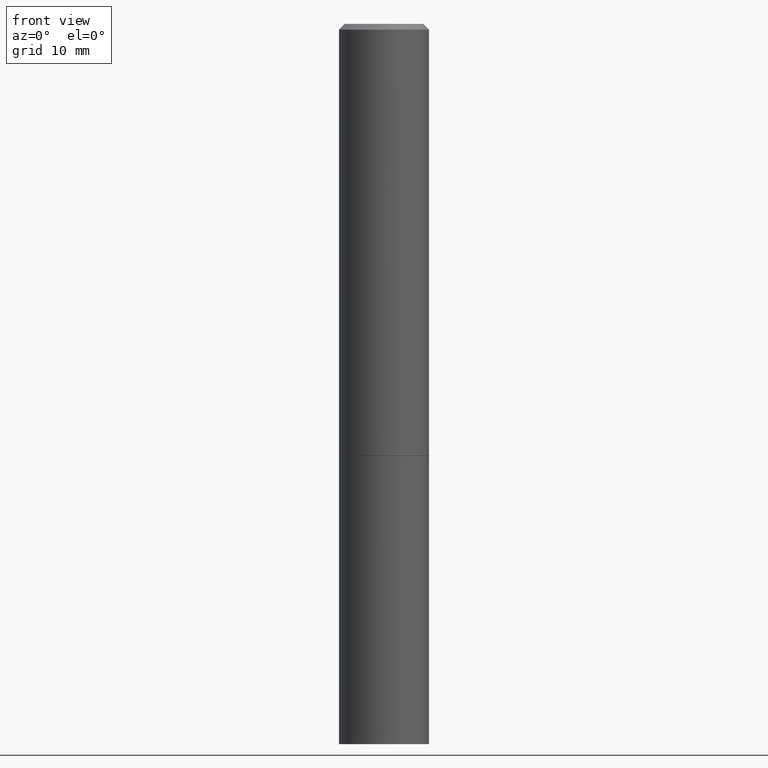
[diagram: clean part render]
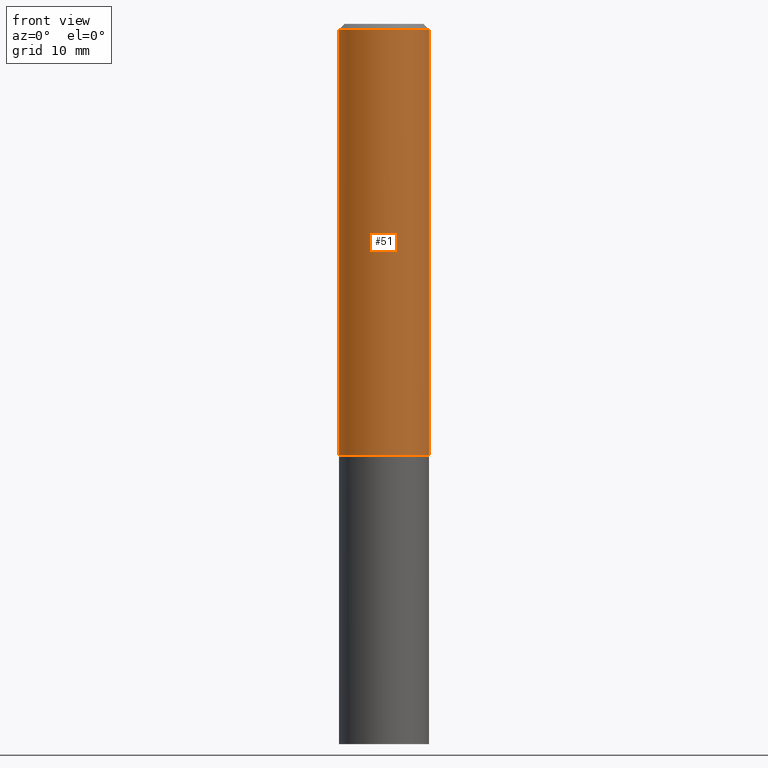
[diagram: same view with one face highlighted and labeled with its STEP entity id]
A machine part, front view. The second image highlights one B-rep face of the part: STEP entity #51.
In plain terms, the highlighted cylindrical surface (partial cylindrical patch) has radius 3.9687 mm, axis along (-0, 0, 1).
Its self-contained STEP definition (entity closure, byte-faithful):
#3 = EDGE_LOOP ( 'NONE', ( #326, #222, #253, #218 ) ) ;
#24 = EDGE_CURVE ( 'NONE', #267, #251, #115, .T. ) ;
#46 = EDGE_CURVE ( 'NONE', #267, #333, #210, .T. ) ;
#48 = DIRECTION ( 'NONE',  ( -2.445468806185136877E-29, 3.491481338843145188E-15, 1.000000000000000000 ) ) ;
#51 = ADVANCED_FACE ( 'NONE', ( #150 ), #259, .T. ) ;
#53 = DIRECTION ( 'NONE',  ( -2.445468806185136597E-29, 3.491481338843145583E-15, 1.000000000000000000 ) ) ;
#65 = CARTESIAN_POINT ( 'NONE',  ( 0.000000000000000000, 0.000000000000000000, 0.000000000000000000 ) ) ;
#67 = DIRECTION ( 'NONE',  ( -2.445468806185136597E-29, 3.491481338843145583E-15, 1.000000000000000000 ) ) ;
#70 = CARTESIAN_POINT ( 'NONE',  ( 3.665757740471519853E-29, -5.233730526925875958E-15, -1.499000000000000110 ) ) ;
#78 = CARTESIAN_POINT ( 'NONE',  ( 0.1562499999999999445, -1.091087918388478779E-15, 7.619026212181146173E-30 ) ) ;
#99 = DIRECTION ( 'NONE',  ( -2.445468806185136597E-29, 3.491481338843145583E-15, 1.000000000000000000 ) ) ;
#107 = CARTESIAN_POINT ( 'NONE',  ( 0.1562500000000000000, -6.324818445314355132E-15, -1.499000000000000110 ) ) ;
#115 = CIRCLE ( 'NONE', #212, 0.1562500000000000000 ) ;
#150 = FACE_OUTER_BOUND ( 'NONE', #3, .T. ) ;
#155 = CARTESIAN_POINT ( 'NONE',  ( 4.890937612370281041E-31, -6.982962677686302702E-17, -0.02000000000000003511 ) ) ;
#171 = VERTEX_POINT ( 'NONE', #342 ) ;
#175 = DIRECTION ( 'NONE',  ( 1.000000000000000000, -6.982962677686266711E-15, 4.876176775795935232E-29 ) ) ;
#188 = VECTOR ( 'NONE', #289, 39.37007874015748143 ) ;
#192 = CARTESIAN_POINT ( 'NONE',  ( -0.1562500000000000000, -1.541557052226212102E-15, -1.499000000000000110 ) ) ;
#210 = LINE ( 'NONE', #319, #188 ) ;
#212 = AXIS2_PLACEMENT_3D ( 'NONE', #70, #99, #350 ) ;
#214 = DIRECTION ( 'NONE',  ( 1.000000000000000000, -6.982962677686265133E-15, 0.000000000000000000 ) ) ;
#218 = ORIENTED_EDGE ( 'NONE', *, *, #272, .F. ) ;
#222 = ORIENTED_EDGE ( 'NONE', *, *, #24, .T. ) ;
#226 = AXIS2_PLACEMENT_3D ( 'NONE', #65, #67, #175 ) ;
#251 = VERTEX_POINT ( 'NONE', #107 ) ;
#252 = EDGE_CURVE ( 'NONE', #251, #171, #331, .T. ) ;
#253 = ORIENTED_EDGE ( 'NONE', *, *, #252, .T. ) ;
#259 = CYLINDRICAL_SURFACE ( 'NONE', #226, 0.1562499999999999445 ) ;
#262 = CIRCLE ( 'NONE', #340, 0.1562499999999998335 ) ;
#266 = CARTESIAN_POINT ( 'NONE',  ( -0.1562499999999998335, 1.021258291611615086E-15, -0.02000000000000003511 ) ) ;
#267 = VERTEX_POINT ( 'NONE', #192 ) ;
#272 = EDGE_CURVE ( 'NONE', #333, #171, #262, .T. ) ;
#289 = DIRECTION ( 'NONE',  ( -2.445468806185136877E-29, 3.491481338843145188E-15, 1.000000000000000000 ) ) ;
#308 = VECTOR ( 'NONE', #48, 39.37007874015748143 ) ;
#319 = CARTESIAN_POINT ( 'NONE',  ( -0.1562499999999999445, 1.110223024625156146E-15, -7.685836078523286956E-30 ) ) ;
#326 = ORIENTED_EDGE ( 'NONE', *, *, #46, .F. ) ;
#331 = LINE ( 'NONE', #78, #308 ) ;
#333 = VERTEX_POINT ( 'NONE', #266 ) ;
#340 = AXIS2_PLACEMENT_3D ( 'NONE', #155, #53, #214 ) ;
#342 = CARTESIAN_POINT ( 'NONE',  ( 0.1562499999999998335, -1.141782438928663724E-15, -0.02000000000000003511 ) ) ;
#350 = DIRECTION ( 'NONE',  ( 1.000000000000000000, -6.982962677686269077E-15, 0.000000000000000000 ) ) ;